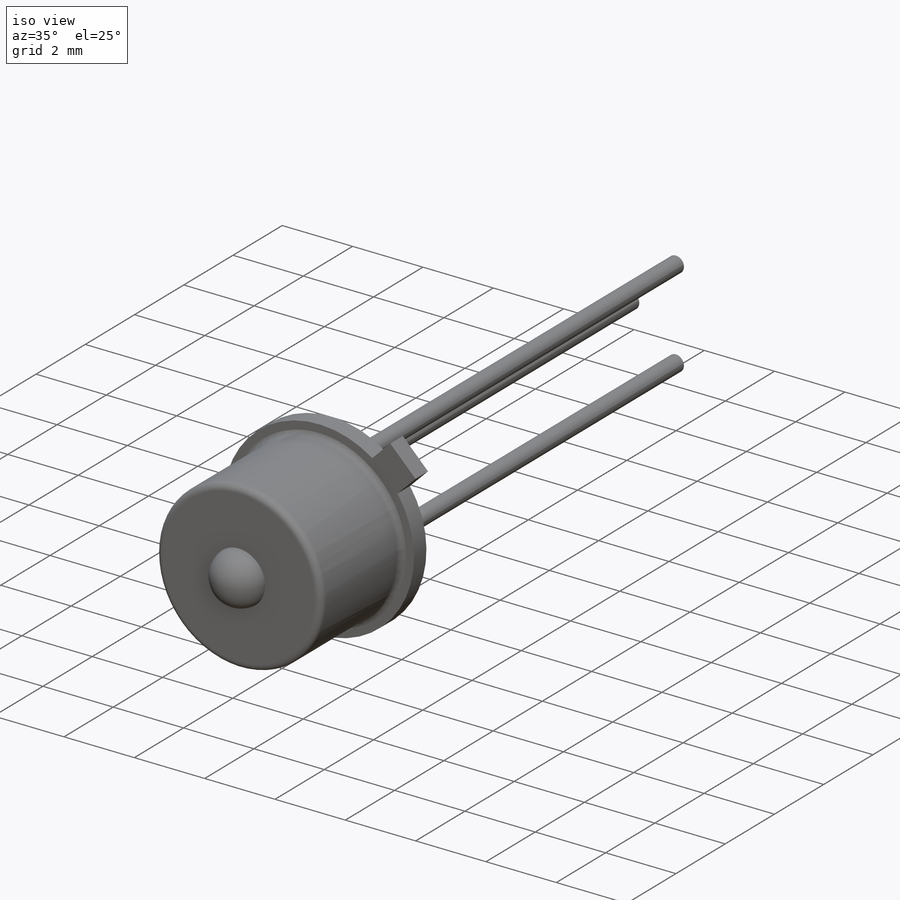
[diagram: iso view]
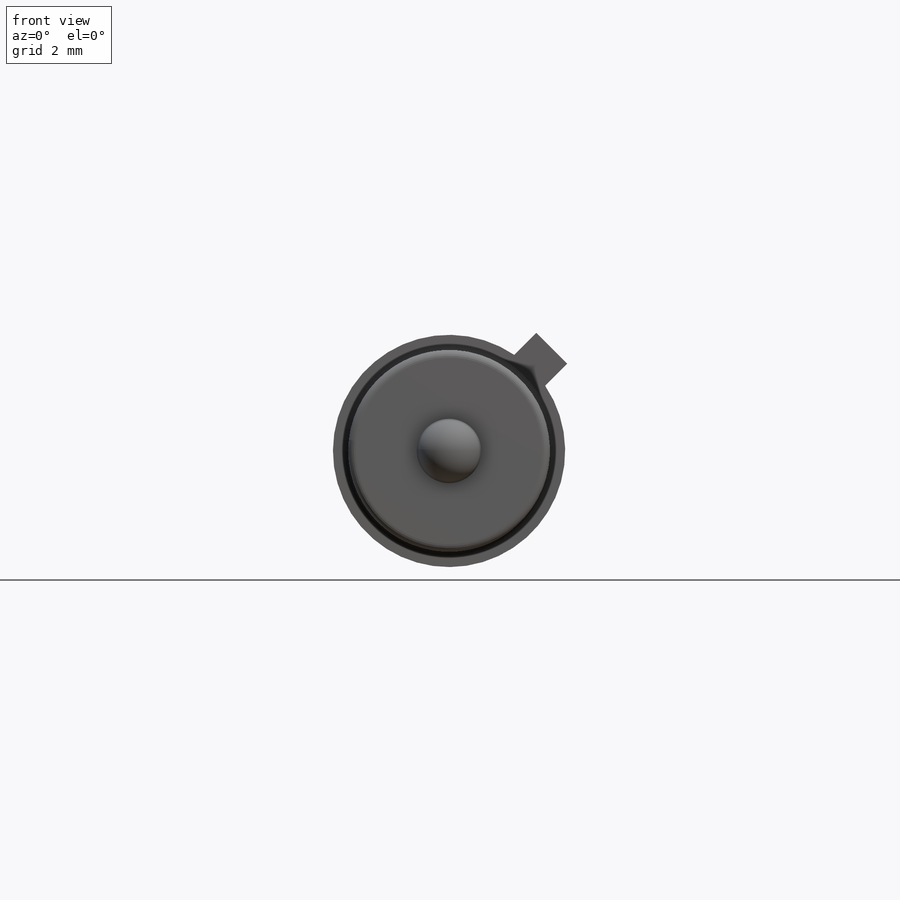
[diagram: front view]
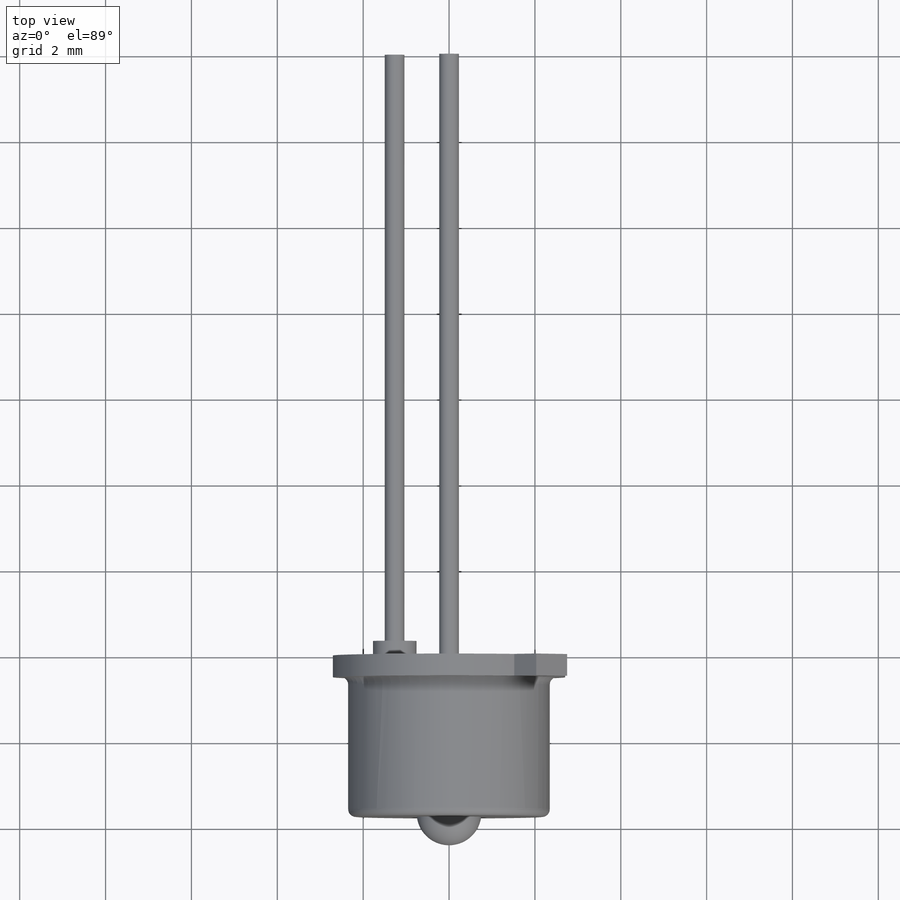
[diagram: top view]
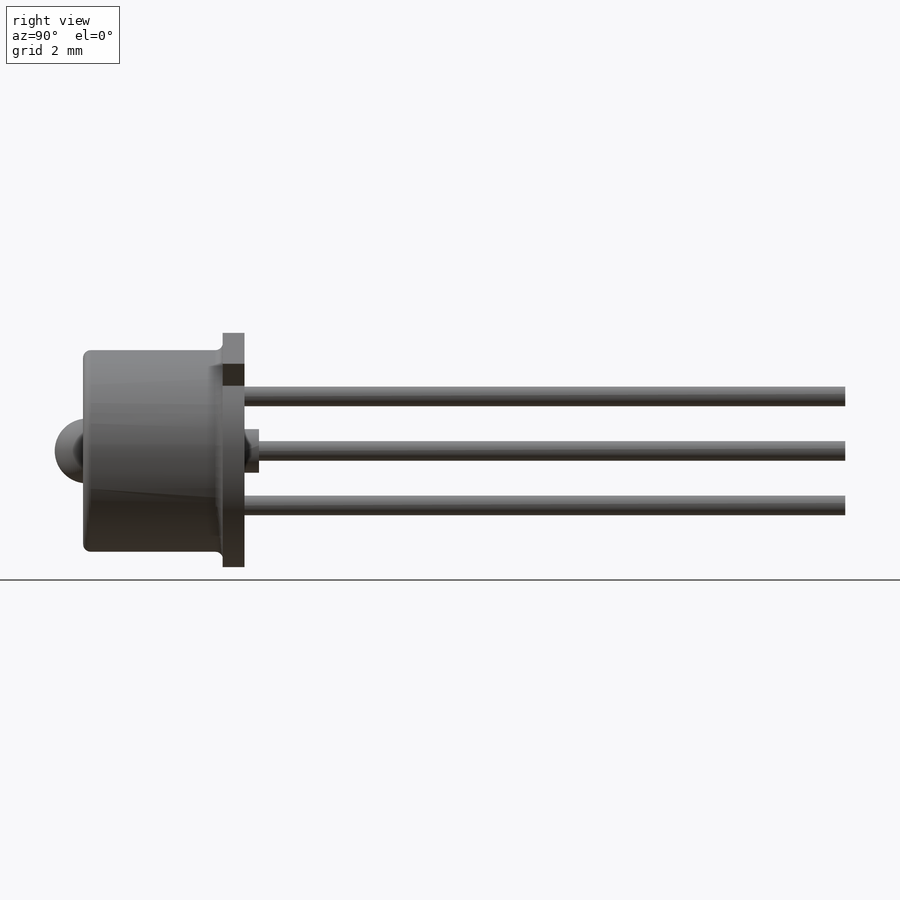
[diagram: right view]
SOLIDWORKS PART (.sldprt)
format: sldprt  version: not decoded by parser v0  size: 358,912 bytes
history: native  units: mm
features: sketch x6, extrude x3, revolve x2, material x1 (+11 scaffold rows collapsed)
feature tree (23):
  scaffold x11  (default folders/planes/origin — collapsed)
  material  "Material <not specified>"
  sketch  "Sketch1"  dims[D1=5.4102mm D2=2.54mm D3=0.4572mm D4=~6.086475mm D5=~0.507213mm]
  extrude  "Boss-Extrude1"  Depth=0.507213mm
  sketch  "Sketch3"  dims[D1=4.699mm]
  sketch  "Sketch4"  dims[D5=0.1778mm D1=~3.251987mm D2=1.6002mm D3=0.1524mm D4=0.1524mm D6=2.3495mm D7=4.699mm]
  revolve  "Revolve1"  Angle=360deg
  sketch  "Sketch7"  dims[D1=2.54mm D2=0.4572mm]
  extrude  "Boss-Extrude2"  Depth=13.9954mm
  sketch  "Sketch8"  dims[D1=~1.014425mm]
  extrude  "Boss-Extrude3"  Depth=0.33815mm
  sketch  "Sketch11"  dims[D1=0.6604mm D2=0.2032mm]
  revolve  "Revolve3"  Angle=360deg
decode coverage: 11 of 11 modeling features carry decoded parameters
note: ~ marks probable driven/reference dimensions
note: suppression state not decoded; provenance and decode notes live in map.json
